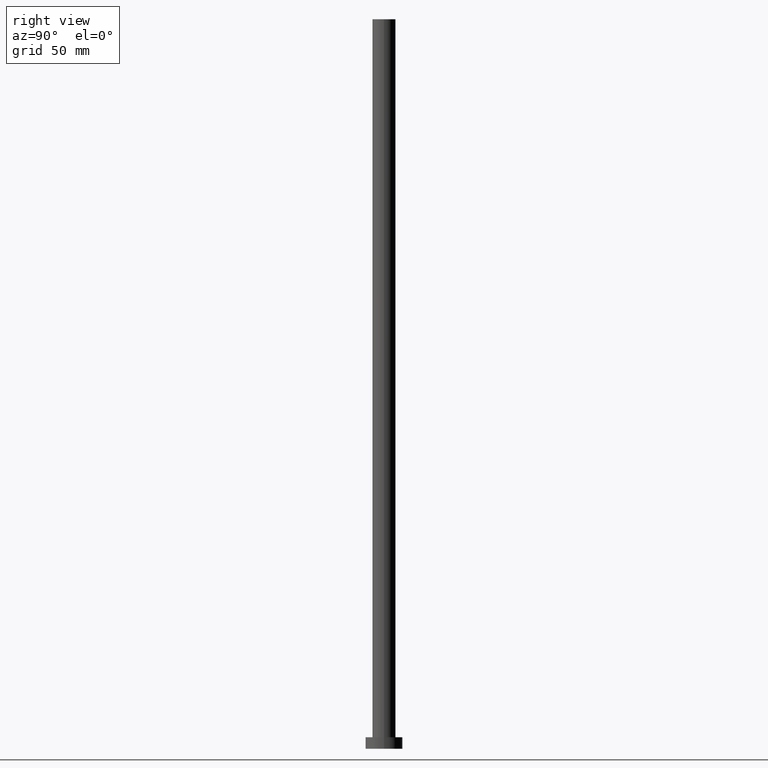
[diagram: clean part render]
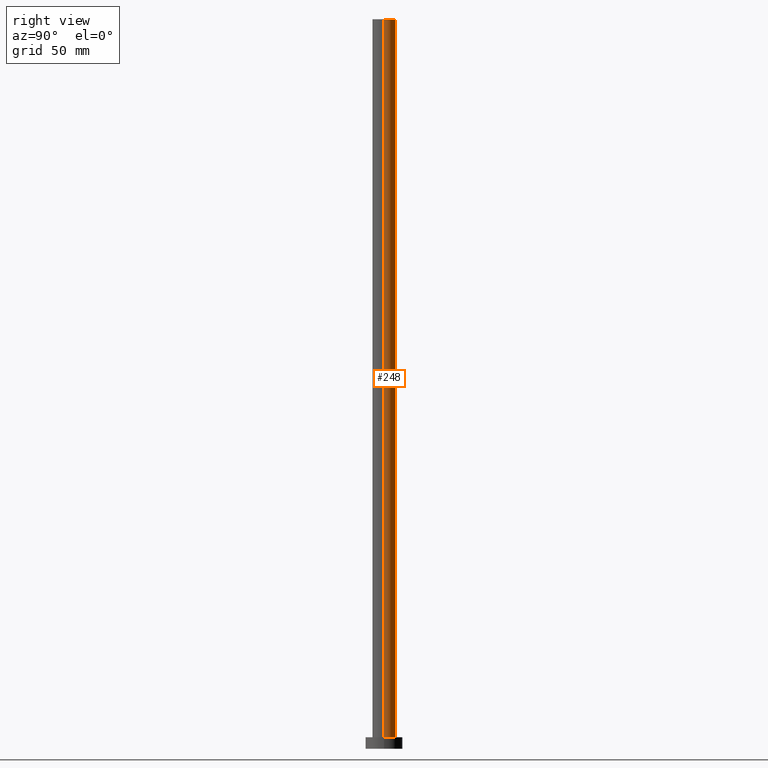
[diagram: same view with one face highlighted and labeled with its STEP entity id]
A machine part, right view. The second image highlights one B-rep face of the part: STEP entity #248.
In plain terms, the highlighted cylindrical surface (edge-blend (fillet) strip) has radius 5 mm, axis along (-0, -0, -1).
Its self-contained STEP definition (entity closure, byte-faithful):
#18 = CIRCLE ( 'NONE', #32, 5.000000000000000888 ) ;
#20 = CYLINDRICAL_SURFACE ( 'NONE', #225, 5.000000000000000888 ) ;
#29 = EDGE_CURVE ( 'NONE', #44, #147, #144, .T. ) ;
#32 = AXIS2_PLACEMENT_3D ( 'NONE', #73, #93, #156 ) ;
#33 = LINE ( 'NONE', #249, #173 ) ;
#44 = VERTEX_POINT ( 'NONE', #130 ) ;
#65 = ORIENTED_EDGE ( 'NONE', *, *, #178, .T. ) ;
#68 = EDGE_CURVE ( 'NONE', #233, #169, #18, .T. ) ;
#73 = CARTESIAN_POINT ( 'NONE',  ( 0.000000000000000000, 0.000000000000000000, 5.000000000000000000 ) ) ;
#75 = DIRECTION ( 'NONE',  ( 0.000000000000000000, 0.000000000000000000, 1.000000000000000000 ) ) ;
#76 = DIRECTION ( 'NONE',  ( -0.000000000000000000, -0.000000000000000000, -1.000000000000000000 ) ) ;
#90 = CARTESIAN_POINT ( 'NONE',  ( 0.000000000000000000, 0.000000000000000000, 315.0000000000000000 ) ) ;
#93 = DIRECTION ( 'NONE',  ( 0.000000000000000000, 0.000000000000000000, 1.000000000000000000 ) ) ;
#100 = DIRECTION ( 'NONE',  ( -0.000000000000000000, -0.000000000000000000, -1.000000000000000000 ) ) ;
#105 = LINE ( 'NONE', #108, #244 ) ;
#106 = ORIENTED_EDGE ( 'NONE', *, *, #29, .F. ) ;
#108 = CARTESIAN_POINT ( 'NONE',  ( 5.000000000000000888, 6.123233995736767268E-16, 315.0000000000000000 ) ) ;
#112 = CARTESIAN_POINT ( 'NONE',  ( -5.000000000000000888, 0.000000000000000000, 315.0000000000000000 ) ) ;
#119 = AXIS2_PLACEMENT_3D ( 'NONE', #90, #75, #179 ) ;
#125 = ORIENTED_EDGE ( 'NONE', *, *, #128, .F. ) ;
#128 = EDGE_CURVE ( 'NONE', #147, #169, #33, .T. ) ;
#130 = CARTESIAN_POINT ( 'NONE',  ( 5.000000000000000888, 6.123233995736767268E-16, 315.0000000000000000 ) ) ;
#139 = DIRECTION ( 'NONE',  ( -1.000000000000000000, 0.000000000000000000, 0.000000000000000000 ) ) ;
#144 = CIRCLE ( 'NONE', #119, 5.000000000000000888 ) ;
#147 = VERTEX_POINT ( 'NONE', #112 ) ;
#156 = DIRECTION ( 'NONE',  ( 1.000000000000000000, 0.000000000000000000, 0.000000000000000000 ) ) ;
#158 = CARTESIAN_POINT ( 'NONE',  ( 0.000000000000000000, 0.000000000000000000, 315.0000000000000000 ) ) ;
#169 = VERTEX_POINT ( 'NONE', #242 ) ;
#173 = VECTOR ( 'NONE', #76, 1000.000000000000000 ) ;
#178 = EDGE_CURVE ( 'NONE', #44, #233, #105, .T. ) ;
#179 = DIRECTION ( 'NONE',  ( 1.000000000000000000, 0.000000000000000000, 0.000000000000000000 ) ) ;
#191 = EDGE_LOOP ( 'NONE', ( #106, #65, #216, #125 ) ) ;
#192 = DIRECTION ( 'NONE',  ( -0.000000000000000000, -0.000000000000000000, -1.000000000000000000 ) ) ;
#203 = FACE_OUTER_BOUND ( 'NONE', #191, .T. ) ;
#204 = CARTESIAN_POINT ( 'NONE',  ( 5.000000000000000888, 6.123233995736767268E-16, 5.000000000000000000 ) ) ;
#216 = ORIENTED_EDGE ( 'NONE', *, *, #68, .T. ) ;
#225 = AXIS2_PLACEMENT_3D ( 'NONE', #158, #100, #139 ) ;
#233 = VERTEX_POINT ( 'NONE', #204 ) ;
#242 = CARTESIAN_POINT ( 'NONE',  ( -5.000000000000000888, 0.000000000000000000, 5.000000000000000000 ) ) ;
#244 = VECTOR ( 'NONE', #192, 1000.000000000000000 ) ;
#248 = ADVANCED_FACE ( 'NONE', ( #203 ), #20, .T. ) ;
#249 = CARTESIAN_POINT ( 'NONE',  ( -5.000000000000000888, 0.000000000000000000, 315.0000000000000000 ) ) ;